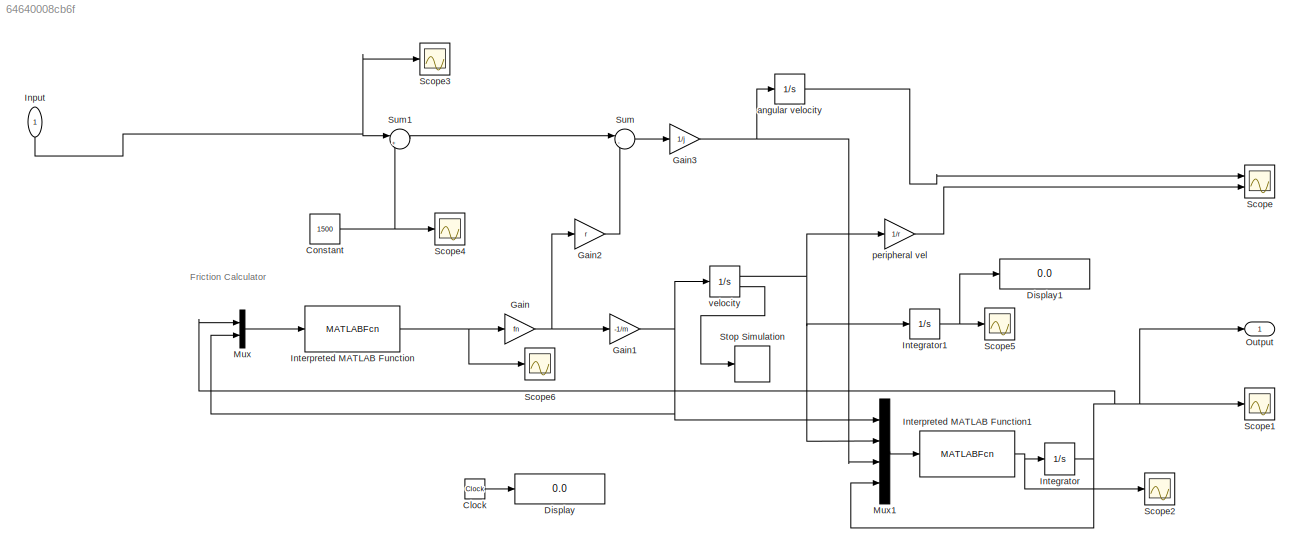
MODEL slx_64640008cb6f
KIND model
CONFIG AbsTol = auto
CONFIG EnableMultiTasking = off
CONFIG FixedStep = auto
CONFIG MaxStep = auto
CONFIG MinStep = auto
CONFIG RelTol = 1e-3
CONFIG SampleTimeConstraint = Unconstrained
CONFIG SolverName = VariableStepAuto
CONFIG StartTime = 0.0
CONFIG StopTime = 10.0
BLOCK [Clock] Clock
BLOCK [Constant] Constant
  Value = 1500
BLOCK [Display] Display
  Decimation = 1
  Ports = [1]
BLOCK [Display] Display1
  Decimation = 1
  Ports = [1]
BLOCK [Gain] Gain
  Gain = fn
BLOCK [Gain] Gain1
  Gain = -1/m
BLOCK [Gain] Gain2
  Gain = r
BLOCK [Gain] Gain3
  Gain = 1/j
BLOCK [Inport] Input
  NameLocation = left
BLOCK [Integrator] Integrator
  LowerSaturationLimit = 0
  Ports = [1, 1]
  UpperSaturationLimit = 1
BLOCK [Integrator] Integrator1
  Ports = [1, 1]
BLOCK [MATLABFcn] Interpreted MATLAB Function
  MATLABFcn = (c1*(1-exp(c1*u(1)))-(c3*u(1)))*exp(-c4*u(2))
  Ports = [1, 1]
BLOCK [MATLABFcn] Interpreted MATLAB Function1
  MATLABFcn = (u(1)*(1-u(4))-(r*u(3)))/(u(2) + (u(2)==0)*eps)
  OutputDimensions = 1
  Ports = [1, 1]
BLOCK [Mux] Mux
  DisplayOption = bar
  Inputs = 2
  Ports = [2, 1]
BLOCK [Mux] Mux1
  DisplayOption = bar
  Ports = [4, 1]
BLOCK [Outport] Output
BLOCK [Scope] Scope
  Floating = off
  NumInputPorts = 2
  Ports = [2]
  ScopeSpecificationString = Simulink.scopes.TimeScopeBlockCfg('CurrentConfiguration', extmgr.ConfigurationSet(extmgr.Configuration('Core','General UI',true),extmgr.Configuration('Core','Source UI',true),extmgr.Configuration('Sources','WiredSimulink',true),extmgr.Configuration('Visuals','Time Domain',true,'SerializedDisplays',{struct('MinYLimReal','-355.11364','MaxYLimReal','3196.02273','YLabelReal','','MinYLimMag',' 0.00000'...<+1440ch>
BLOCK [Scope] Scope1
  Floating = off
  NumInputPorts = 1
  Ports = [1]
  ScopeSpecificationString = Simulink.scopes.TimeScopeBlockCfg('CurrentConfiguration', extmgr.ConfigurationSet(extmgr.Configuration('Core','General UI',true),extmgr.Configuration('Core','Source UI',true),extmgr.Configuration('Sources','WiredSimulink',true,'DataLoggingVariableName','ScopeData1'),extmgr.Configuration('Visuals','Time Domain',true,'SerializedDisplays',{struct('MinYLimReal','-6.73273','MaxYLimReal','60.59455','YLa...<+1373ch>
BLOCK [Scope] Scope2
  Floating = off
  NumInputPorts = 1
  Ports = [1]
  ScopeSpecificationString = Simulink.scopes.TimeScopeBlockCfg('CurrentConfiguration', extmgr.ConfigurationSet(extmgr.Configuration('Core','General UI',true),extmgr.Configuration('Core','Source UI',true),extmgr.Configuration('Sources','WiredSimulink',true,'DataLoggingVariableName','ScopeData2'),extmgr.Configuration('Visuals','Time Domain',true),extmgr.Configuration('Tools','Plot Navigation',true),extmgr.Configuration('Tools',...<+40ch>
BLOCK [Scope] Scope3
  Floating = off
  NumInputPorts = 1
  Ports = [1]
  ScopeSpecificationString = Simulink.scopes.TimeScopeBlockCfg('CurrentConfiguration', extmgr.ConfigurationSet(extmgr.Configuration('Core','General UI',true),extmgr.Configuration('Core','Source UI',true),extmgr.Configuration('Sources','WiredSimulink',true,'DataLoggingVariableName','ScopeData3'),extmgr.Configuration('Visuals','Time Domain',true),extmgr.Configuration('Tools','Plot Navigation',true),extmgr.Configuration('Tools',...<+40ch>
BLOCK [Scope] Scope4
  Floating = off
  NumInputPorts = 1
  Ports = [1]
  ScopeSpecificationString = Simulink.scopes.TimeScopeBlockCfg('CurrentConfiguration', extmgr.ConfigurationSet(extmgr.Configuration('Core','General UI',true),extmgr.Configuration('Core','Source UI',true),extmgr.Configuration('Sources','WiredSimulink',true,'DataLoggingVariableName','ScopeData4'),extmgr.Configuration('Visuals','Time Domain',true,'SerializedDisplays',{struct('MinYLimReal','-1.00000','MaxYLimReal','1.00000','YLab...<+1471ch>
BLOCK [Scope] Scope5
  Floating = off
  NumInputPorts = 1
  Ports = [1]
  ScopeSpecificationString = Simulink.scopes.TimeScopeBlockCfg('CurrentConfiguration', extmgr.ConfigurationSet(extmgr.Configuration('Core','General UI',true),extmgr.Configuration('Core','Source UI',true),extmgr.Configuration('Sources','WiredSimulink',true,'DataLoggingVariableName','ScopeData5'),extmgr.Configuration('Visuals','Time Domain',true,'SerializedDisplays',{struct('MinYLimReal','-30.5516','MaxYLimReal','274.96443','YL...<+1403ch>
BLOCK [Scope] Scope6
  Floating = off
  NumInputPorts = 1
  Ports = [1]
  ScopeSpecificationString = Simulink.scopes.TimeScopeBlockCfg('CurrentConfiguration', extmgr.ConfigurationSet(extmgr.Configuration('Core','General UI',true),extmgr.Configuration('Core','Source UI',true),extmgr.Configuration('Sources','WiredSimulink',true,'DataLoggingVariableName','ScopeData6'),extmgr.Configuration('Visuals','Time Domain',true,'SerializedDisplays',{struct('MinYLimReal','-243.94606','MaxYLimReal','27.10512','Y...<+1467ch>
BLOCK [Stop] Stop Simulation
BLOCK [Sum] Sum
  Inputs = |-+
  Ports = [2, 1]
BLOCK [Sum] Sum1
  Inputs = |++
  Ports = [2, 1]
BLOCK [Integrator] angular velocity
  InitialCondition = w0
  LimitOutput = on
  LowerSaturationLimit = 0
  Ports = [1, 1]
  UpperSaturationLimit = 1000
BLOCK [Gain] peripheral vel
  Gain = 1/r
BLOCK [Integrator] velocity
  InitialCondition = v0
  LimitOutput = on
  LowerSaturationLimit = 0
  Ports = [1, 2]
  ShowSaturationPort = on
  UpperSaturationLimit = 1000
ANNOTATION (root): Friction Calculator
LINE Clock:1 -> Display:1
NET Constant:1 -> Scope4:1, Sum1:2
NET Gain1:1 -> Mux1:1, Mux:2, velocity:1
LINE Gain2:1 -> Sum:2
NET Gain3:1 -> Mux1:3, angular velocity:1
NET Gain:1 -> Gain1:1, Gain2:1
NET Input:1 -> Scope3:1, Sum1:1
NET Integrator1:1 -> Display1:1, Scope5:1
NET Integrator:1 -> Mux1:4, Mux:1, Output:1, Scope1:1
NET Interpreted MATLAB Function1:1 -> Integrator:1, Scope2:1
NET Interpreted MATLAB Function:1 -> Gain:1, Scope6:1
LINE Mux1:1 -> Interpreted MATLAB Function1:1
LINE Mux:1 -> Interpreted MATLAB Function:1
LINE Sum1:1 -> Sum:1
LINE Sum:1 -> Gain3:1
LINE angular velocity:1 -> Scope:1
LINE peripheral vel:1 -> Scope:2
NET velocity:1 -> Integrator1:1, Mux1:2, peripheral vel:1
LINE velocity:2 -> Stop Simulation:1
note: NET lines group one-source signal fan-out (src -> all destinations, sorted); 1:1 wires keep LINE
